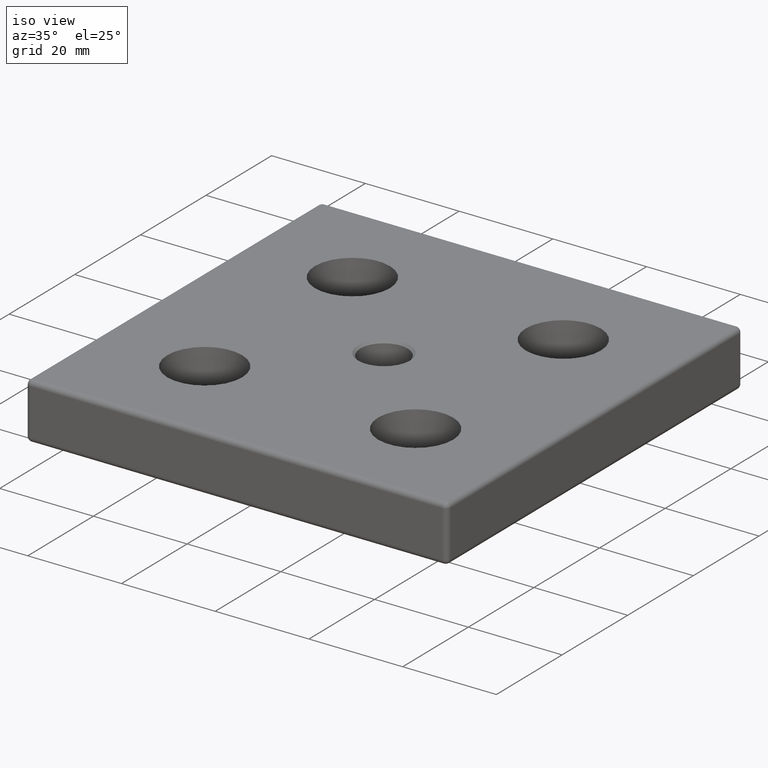
[diagram: clean part render]
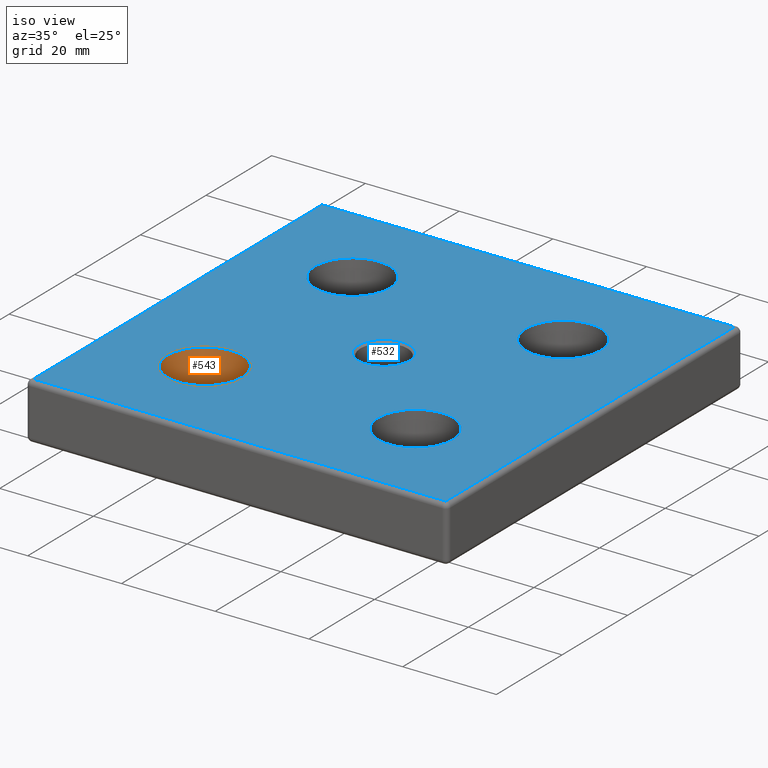
[diagram: same view with the hole feature highlighted: cylindrical wall and planar end face, labeled with their STEP entity ids]
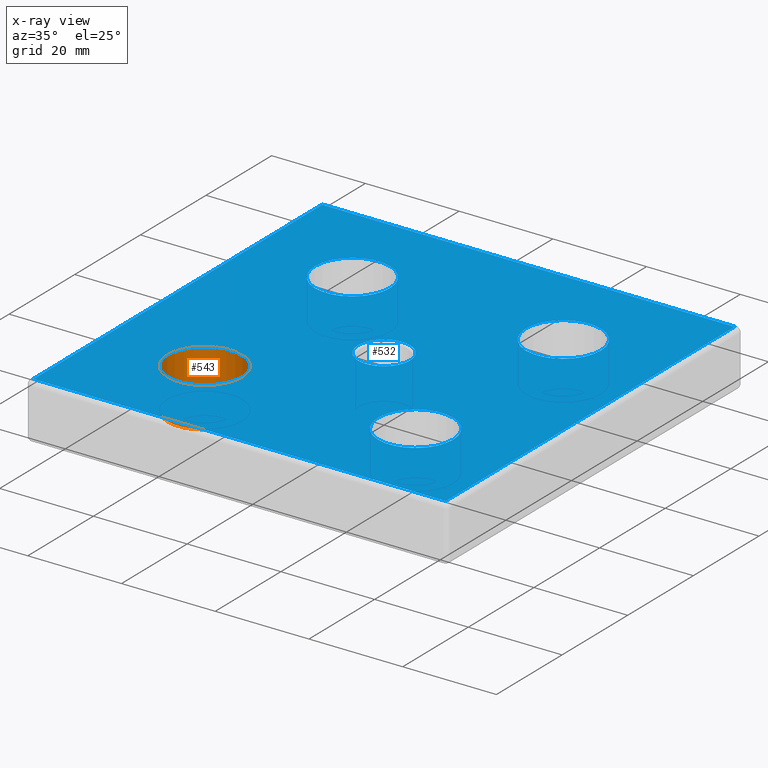
[diagram: x-ray of the same camera — body ghosted, the hole faces saturated]
A machine part, iso view. The highlighted faces form one hole feature of diameter 16 mm: the cylindrical wall (entity #543, orange) and its adjacent planar end face (entity #532, blue) — they share a circular edge in the B-rep.
The next image is the same camera in x-ray (body ghosted, the hole faces saturated) — the bore reads through the body.
Wall:
#88=CYLINDRICAL_SURFACE('',#606,8.);
#125=FACE_BOUND('',#207,.T.);
#142=FACE_OUTER_BOUND('',#206,.T.);
#206=EDGE_LOOP('',(#434));
#207=EDGE_LOOP('',(#435));
#242=CIRCLE('',#584,8.);
#252=CIRCLE('',#604,8.);
#294=VERTEX_POINT('',#890);
#304=VERTEX_POINT('',#920);
#338=EDGE_CURVE('',#294,#294,#242,.T.);
#348=EDGE_CURVE('',#304,#304,#252,.T.);
#434=ORIENTED_EDGE('',*,*,#338,.F.);
#435=ORIENTED_EDGE('',*,*,#348,.F.);
#543=ADVANCED_FACE('',(#142,#125),#88,.F.);
#584=AXIS2_PLACEMENT_3D('',#891,#692,#693);
#604=AXIS2_PLACEMENT_3D('',#921,#732,#733);
#606=AXIS2_PLACEMENT_3D('',#924,#736,#737);
#692=DIRECTION('center_axis',(0.,0.,-1.));
#693=DIRECTION('ref_axis',(1.,0.,0.));
#732=DIRECTION('center_axis',(0.,0.,1.));
#733=DIRECTION('ref_axis',(1.,0.,0.));
#736=DIRECTION('center_axis',(0.,0.,1.));
#737=DIRECTION('ref_axis',(1.,0.,0.));
#890=CARTESIAN_POINT('',(-14.5,-22.5,12.));
#891=CARTESIAN_POINT('Origin',(-22.5,-22.5,12.));
#920=CARTESIAN_POINT('',(-14.5,-22.5,3.5));
#921=CARTESIAN_POINT('Origin',(-22.5,-22.5,3.5));
#924=CARTESIAN_POINT('Origin',(-22.5,-22.5,7.75));
End face:
#27=LINE('',#884,#51);
#28=LINE('',#886,#52);
#29=LINE('',#888,#53);
#30=LINE('',#889,#54);
#51=VECTOR('',#688,88.);
#52=VECTOR('',#689,88.);
#53=VECTOR('',#690,88.);
#54=VECTOR('',#691,88.);
#72=PLANE('',#583);
#110=FACE_BOUND('',#181,.T.);
#111=FACE_BOUND('',#182,.T.);
#112=FACE_BOUND('',#183,.T.);
#113=FACE_BOUND('',#184,.T.);
#114=FACE_BOUND('',#185,.T.);
#131=FACE_OUTER_BOUND('',#180,.T.);
#180=EDGE_LOOP('',(#405,#406,#407,#408));
#181=EDGE_LOOP('',(#409));
#182=EDGE_LOOP('',(#410));
#183=EDGE_LOOP('',(#411));
#184=EDGE_LOOP('',(#412));
#185=EDGE_LOOP('',(#413));
#241=CIRCLE('',#582,5.553);
#242=CIRCLE('',#584,8.);
#243=CIRCLE('',#585,8.);
#244=CIRCLE('',#586,8.);
#245=CIRCLE('',#587,8.);
#289=VERTEX_POINT('',#879);
#290=VERTEX_POINT('',#882);
#291=VERTEX_POINT('',#883);
#292=VERTEX_POINT('',#885);
#293=VERTEX_POINT('',#887);
#294=VERTEX_POINT('',#890);
#295=VERTEX_POINT('',#892);
#296=VERTEX_POINT('',#894);
#297=VERTEX_POINT('',#896);
#333=EDGE_CURVE('',#289,#289,#241,.T.);
#334=EDGE_CURVE('',#290,#291,#27,.T.);
#335=EDGE_CURVE('',#292,#290,#28,.T.);
#336=EDGE_CURVE('',#293,#292,#29,.T.);
#337=EDGE_CURVE('',#291,#293,#30,.T.);
#338=EDGE_CURVE('',#294,#294,#242,.T.);
#339=EDGE_CURVE('',#295,#295,#243,.T.);
#340=EDGE_CURVE('',#296,#296,#244,.T.);
#341=EDGE_CURVE('',#297,#297,#245,.T.);
#405=ORIENTED_EDGE('',*,*,#334,.F.);
#406=ORIENTED_EDGE('',*,*,#335,.F.);
#407=ORIENTED_EDGE('',*,*,#336,.F.);
#408=ORIENTED_EDGE('',*,*,#337,.F.);
#409=ORIENTED_EDGE('',*,*,#338,.T.);
#410=ORIENTED_EDGE('',*,*,#339,.T.);
#411=ORIENTED_EDGE('',*,*,#340,.T.);
#412=ORIENTED_EDGE('',*,*,#341,.T.);
#413=ORIENTED_EDGE('',*,*,#333,.F.);
#532=ADVANCED_FACE('',(#131,#110,#111,#112,#113,#114),#72,.T.);
#582=AXIS2_PLACEMENT_3D('',#880,#684,#685);
#583=AXIS2_PLACEMENT_3D('',#881,#686,#687);
#584=AXIS2_PLACEMENT_3D('',#891,#692,#693);
#585=AXIS2_PLACEMENT_3D('',#893,#694,#695);
#586=AXIS2_PLACEMENT_3D('',#895,#696,#697);
#587=AXIS2_PLACEMENT_3D('',#897,#698,#699);
#684=DIRECTION('center_axis',(0.,0.,1.));
#685=DIRECTION('ref_axis',(-1.,0.,0.));
#686=DIRECTION('center_axis',(0.,0.,1.));
#687=DIRECTION('ref_axis',(1.,0.,0.));
#688=DIRECTION('',(1.,0.,0.));
#689=DIRECTION('',(0.,1.,0.));
#690=DIRECTION('',(-1.,0.,0.));
#691=DIRECTION('',(0.,-1.,0.));
#692=DIRECTION('center_axis',(0.,0.,-1.));
#693=DIRECTION('ref_axis',(1.,0.,0.));
#694=DIRECTION('center_axis',(0.,0.,-1.));
#695=DIRECTION('ref_axis',(1.,0.,0.));
#696=DIRECTION('center_axis',(0.,0.,-1.));
#697=DIRECTION('ref_axis',(1.,0.,0.));
#698=DIRECTION('center_axis',(0.,0.,-1.));
#699=DIRECTION('ref_axis',(1.,0.,0.));
#879=CARTESIAN_POINT('',(5.553,6.80046367566525E-16,12.));
#880=CARTESIAN_POINT('Origin',(0.,0.,12.));
#881=CARTESIAN_POINT('Origin',(0.,0.,12.));
#882=CARTESIAN_POINT('',(-44.,44.,12.));
#883=CARTESIAN_POINT('',(44.,44.,12.));
#884=CARTESIAN_POINT('',(22.5,44.,12.));
#885=CARTESIAN_POINT('',(-44.,-44.,12.));
#886=CARTESIAN_POINT('',(-44.,22.5,12.));
#887=CARTESIAN_POINT('',(44.,-44.,12.));
#888=CARTESIAN_POINT('',(-22.5,-44.,12.));
#889=CARTESIAN_POINT('',(44.,-22.5,12.));
#890=CARTESIAN_POINT('',(-14.5,-22.5,12.));
#891=CARTESIAN_POINT('Origin',(-22.5,-22.5,12.));
#892=CARTESIAN_POINT('',(30.5,22.5,12.));
#893=CARTESIAN_POINT('Origin',(22.5,22.5,12.));
#894=CARTESIAN_POINT('',(-14.5,22.5,12.));
#895=CARTESIAN_POINT('Origin',(-22.5,22.5,12.));
#896=CARTESIAN_POINT('',(30.5,-22.5,12.));
#897=CARTESIAN_POINT('Origin',(22.5,-22.5,12.));